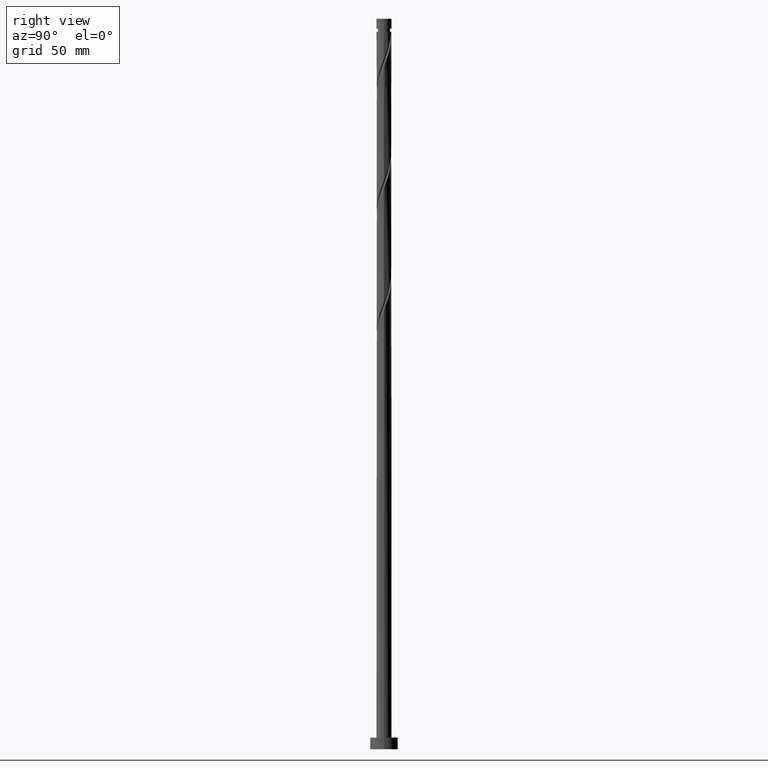
[diagram: clean part render]
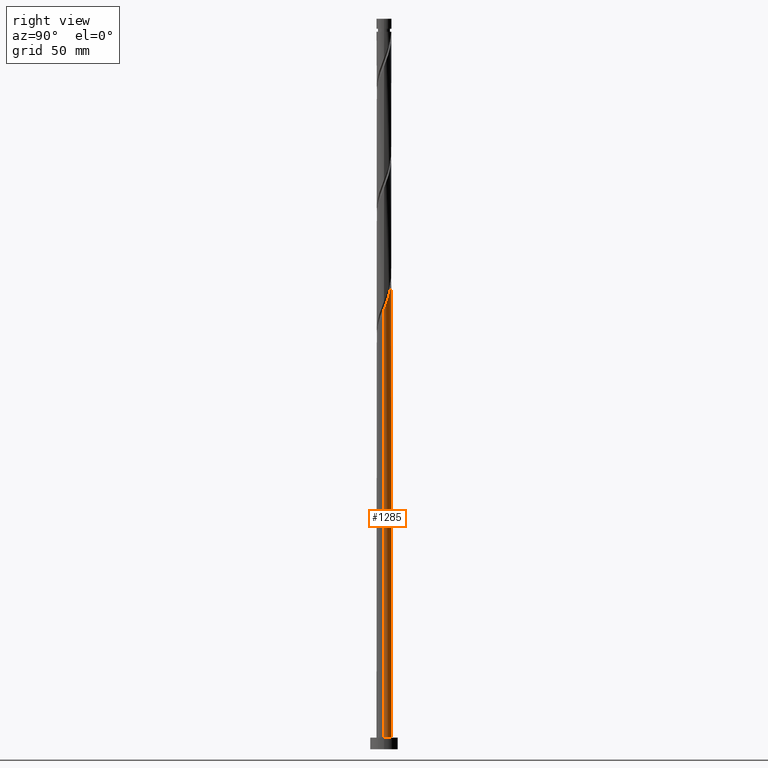
[diagram: same view with one face highlighted and labeled with its STEP entity id]
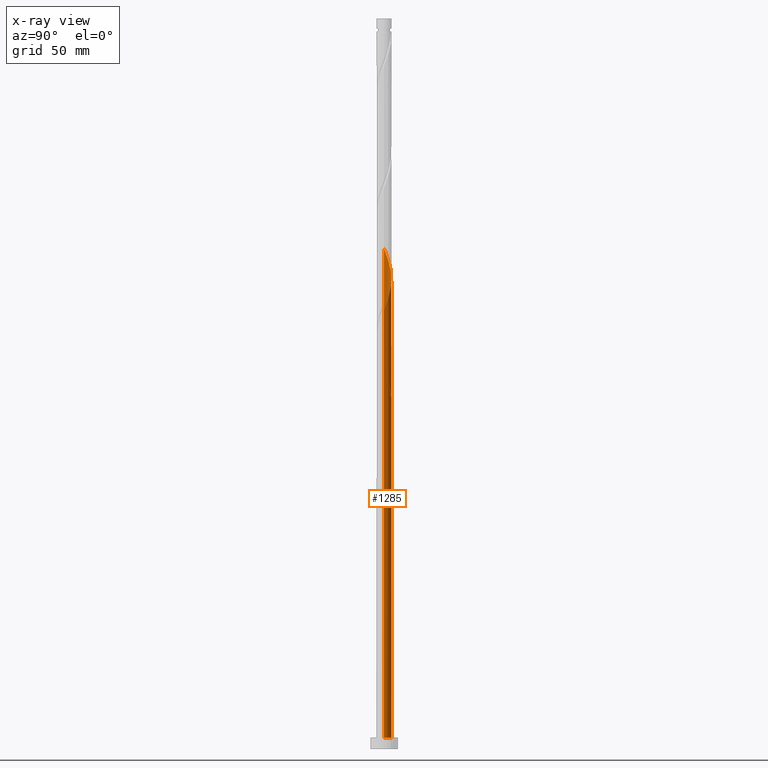
[diagram: x-ray of the same camera — body ghosted, the highlighted face saturated]
A machine part, right view. The second image highlights one B-rep face of the part: STEP entity #1285.
The next image is the same camera in x-ray: the body ghosted, the highlighted face saturated — about 0% of this face is hidden behind the body in this view.
In plain terms, the highlighted cylindrical surface (edge-blend (fillet) strip) has radius 3.25 mm, axis along (-0, -0, -1).
Its self-contained STEP definition (entity closure, byte-faithful):
#12 = CYLINDRICAL_SURFACE ( 'NONE', #1210, 3.250000000000000444 ) ;
#33 = DIRECTION ( 'NONE',  ( 0.000000000000000000, 0.000000000000000000, 1.000000000000000000 ) ) ;
#45 = CARTESIAN_POINT ( 'NONE',  ( -3.250000000000004441, 0.03910691579077167634, 163.2696567482252874 ) ) ;
#66 = CARTESIAN_POINT ( 'NONE',  ( -3.249058997255960257, 0.07820250859228379536, 215.6695365143565368 ) ) ;
#69 = EDGE_CURVE ( 'NONE', #617, #1057, #356, .T. ) ;
#72 = CARTESIAN_POINT ( 'NONE',  ( -0.7992254509778172755, 3.150196609500636846, 155.6695365143564800 ) ) ;
#84 = ORIENTED_EDGE ( 'NONE', *, *, #1621, .T. ) ;
#94 = CARTESIAN_POINT ( 'NONE',  ( 2.810333910491136233, 1.672906533717720912, 194.1070365143565368 ) ) ;
#156 = CARTESIAN_POINT ( 'NONE',  ( -3.060145528295977524, 1.154167364233618098, 160.3570365143565368 ) ) ;
#162 = EDGE_CURVE ( 'NONE', #311, #1448, #1530, .T. ) ;
#167 = DIRECTION ( 'NONE',  ( -1.000000000000000000, 0.000000000000000000, 0.000000000000000000 ) ) ;
#179 = CARTESIAN_POINT ( 'NONE',  ( -3.250000000000000000, -1.552280446238707703E-14, 166.7190535922625543 ) ) ;
#201 = CARTESIAN_POINT ( 'NONE',  ( 0.000000000000000000, 0.000000000000000000, 315.0000000000000000 ) ) ;
#214 = CARTESIAN_POINT ( 'NONE',  ( -3.250000000000000444, 0.000000000000000000, 5.000000000000000000 ) ) ;
#220 = CARTESIAN_POINT ( 'NONE',  ( -2.086896333651874880, 2.491458145863655105, 159.4195365143564800 ) ) ;
#224 = CARTESIAN_POINT ( 'NONE',  ( -1.339255840709440815, 2.961231803342264435, 206.2945365143564516 ) ) ;
#251 = CARTESIAN_POINT ( 'NONE',  ( 0.000000000000000000, 0.000000000000000000, 151.9195365143565084 ) ) ;
#260 = CARTESIAN_POINT ( 'NONE',  ( -0.2878785205374513878, 3.257870303806616352, 203.4820365143565368 ) ) ;
#264 = CARTESIAN_POINT ( 'NONE',  ( -1.005605147701160273, 3.112129696193390860, 152.8570365143564800 ) ) ;
#277 = ORIENTED_EDGE ( 'NONE', *, *, #807, .F. ) ;
#281 = EDGE_CURVE ( 'NONE', #1448, #1698, #1314, .T. ) ;
#300 = CARTESIAN_POINT ( 'NONE',  ( -3.250000000000004441, -1.925424784276849200E-15, 163.3700194364504057 ) ) ;
#308 = DIRECTION ( 'NONE',  ( -0.000000000000000000, -0.000000000000000000, -1.000000000000000000 ) ) ;
#311 = VERTEX_POINT ( 'NONE', #1219 ) ;
#325 = VERTEX_POINT ( 'NONE', #1715 ) ;
#334 = CARTESIAN_POINT ( 'NONE',  ( -3.150196609500639955, 0.7992254509778187188, 161.2945365143564516 ) ) ;
#356 = LINE ( 'NONE', #1675, #938 ) ;
#366 = EDGE_CURVE ( 'NONE', #311, #617, #1557, .T. ) ;
#382 = CARTESIAN_POINT ( 'NONE',  ( -0.07820250859228310147, 3.249058997255955372, 153.7945365143565084 ) ) ;
#385 = CARTESIAN_POINT ( 'NONE',  ( 3.112129696193390860, 1.005605147701160051, 192.2320365143565084 ) ) ;
#406 = CARTESIAN_POINT ( 'NONE',  ( 3.250000000000004441, 1.507503125674122439E-15, 189.6200194364504625 ) ) ;
#409 = DIRECTION ( 'NONE',  ( -1.000000000000000000, 0.000000000000000000, 0.000000000000000000 ) ) ;
#420 = CARTESIAN_POINT ( 'NONE',  ( 0.07820250859228454476, 3.249058997255959813, 202.5445365143565368 ) ) ;
#425 = CARTESIAN_POINT ( 'NONE',  ( -2.491458145863657325, 2.086896333651877988, 157.5445365143565368 ) ) ;
#470 = CARTESIAN_POINT ( 'NONE',  ( -3.112129696193387751, 1.005605147701159607, 164.1070365143564800 ) ) ;
#477 = CARTESIAN_POINT ( 'NONE',  ( -3.240247690705303274, 0.4442835377220196724, 162.2320365143565084 ) ) ;
#504 = VERTEX_POINT ( 'NONE', #806 ) ;
#519 = VECTOR ( 'NONE', #1874, 1000.000000000000000 ) ;
#537 = CARTESIAN_POINT ( 'NONE',  ( 0.4442835377220202830, 3.240247690705302830, 201.6070365143565084 ) ) ;
#544 = CARTESIAN_POINT ( 'NONE',  ( -2.256321400684337952, 2.367616247584416467, 209.1070365143565368 ) ) ;
#545 = CIRCLE ( 'NONE', #785, 3.250000000000000444 ) ;
#556 = CARTESIAN_POINT ( 'NONE',  ( -0.6467418341193053033, 3.185000000000003606, 204.4195365143565368 ) ) ;
#565 = CARTESIAN_POINT ( 'NONE',  ( 1.154167364233618986, 3.060145528295977080, 199.7320365143565084 ) ) ;
#567 = CARTESIAN_POINT ( 'NONE',  ( 3.250000000000000444, 3.980102097228898231E-16, 5.000000000000000000 ) ) ;
#574 = CARTESIAN_POINT ( 'NONE',  ( 2.588975079037776794, 1.964613967201029432, 195.0445365143564516 ) ) ;
#610 = CARTESIAN_POINT ( 'NONE',  ( -2.893370209669477333, 1.480171891976478582, 159.4195365143564800 ) ) ;
#617 = VERTEX_POINT ( 'NONE', #714 ) ;
#634 = DIRECTION ( 'NONE',  ( 1.000000000000000000, 0.000000000000000000, 0.000000000000000000 ) ) ;
#656 = CARTESIAN_POINT ( 'NONE',  ( -0.4442835377220185067, 3.240247690705299277, 154.7320365143565368 ) ) ;
#676 = CARTESIAN_POINT ( 'NONE',  ( 3.185000000000003606, 0.6467418341193055253, 191.2945365143565084 ) ) ;
#685 = CARTESIAN_POINT ( 'NONE',  ( 2.961231803342264435, 1.339255840709440148, 193.1695365143565084 ) ) ;
#694 = LINE ( 'NONE', #1894, #519 ) ;
#714 = CARTESIAN_POINT ( 'NONE',  ( -3.250000000000004885, -1.925424784276849200E-15, 215.8700194364505194 ) ) ;
#730 = CARTESIAN_POINT ( 'NONE',  ( -0.6467418341193055253, 3.185000000000003606, 151.9195365143565084 ) ) ;
#751 = CARTESIAN_POINT ( 'NONE',  ( -3.250000000000000444, 0.3266372899592467349, 165.8807825132989251 ) ) ;
#759 = VERTEX_POINT ( 'NONE', #1526 ) ;
#785 = AXIS2_PLACEMENT_3D ( 'NONE', #251, #1288, #409 ) ;
#806 = CARTESIAN_POINT ( 'NONE',  ( -0.6467418341193055253, 3.185000000000003162, 151.9195365143565084 ) ) ;
#807 = EDGE_CURVE ( 'NONE', #1057, #325, #1757, .T. ) ;
#819 = CARTESIAN_POINT ( 'NONE',  ( -1.480171891976476584, 2.893370209669474225, 157.5445365143565084 ) ) ;
#836 = CARTESIAN_POINT ( 'NONE',  ( -2.367616247584412914, 2.256321400684335732, 160.3570365143564800 ) ) ;
#896 = CARTESIAN_POINT ( 'NONE',  ( -2.726594891042978919, 1.806176419719339732, 158.4820365143564800 ) ) ;
#909 = CARTESIAN_POINT ( 'NONE',  ( -3.249058997255960257, 0.07820250859228379536, 163.1695365143564516 ) ) ;
#938 = VECTOR ( 'NONE', #1099, 1000.000000000000000 ) ;
#944 =( BOUNDED_CURVE ( )  B_SPLINE_CURVE ( 2, ( #730, #264, #1458, #1441, #1301, #1889, #425, #896, #610, #156, #334, #477, #909, #45, #300 ),
 .UNSPECIFIED., .F., .T. ) 
 B_SPLINE_CURVE_WITH_KNOTS ( ( 3, 2, 2, 2, 2, 2, 2, 3 ),
 ( 0.000000000000000000, 0.008928571428571396851, 0.01785714285714290472, 0.02678571428571430504, 0.03571428571428569843, 0.04464285714285709528, 0.05357142857142861009, 0.05453034012992197255 ),
 .UNSPECIFIED. ) 
 CURVE ( )  GEOMETRIC_REPRESENTATION_ITEM ( )  RATIONAL_B_SPLINE_CURVE ( ( 0.9090909090909453649, 0.9033747362666201264, 0.9090909090909453649, 0.9033747362666201264, 0.9090909090909453649, 0.9033747362666201264, 0.9090909090909453649, 0.9033747362666201264, 0.9090909090909453649, 0.9033747362666201264, 0.9090909090909453649, 0.9033747362666201264, 0.9090909090909453649, 0.9084770030214871506, 0.9079949616362155140 ) ) 
 REPRESENTATION_ITEM ( '' )  );
#947 = CARTESIAN_POINT ( 'NONE',  ( 3.250000000000000444, 3.980102097228898231E-16, 315.0000000000000000 ) ) ;
#962 = CARTESIAN_POINT ( 'NONE',  ( -2.726594891042978919, 1.806176419719339732, 210.9820365143565084 ) ) ;
#981 = CARTESIAN_POINT ( 'NONE',  ( -3.060145528295977524, 1.154167364233618098, 212.8570365143565652 ) ) ;
#1025 = ORIENTED_EDGE ( 'NONE', *, *, #1915, .F. ) ;
#1046 = EDGE_CURVE ( 'NONE', #504, #759, #944, .T. ) ;
#1057 = VERTEX_POINT ( 'NONE', #179 ) ;
#1058 = CARTESIAN_POINT ( 'NONE',  ( -2.588975079037771909, 1.964613967201027434, 161.2945365143564800 ) ) ;
#1066 = ORIENTED_EDGE ( 'NONE', *, *, #1046, .F. ) ;
#1092 = DIRECTION ( 'NONE',  ( -0.000000000000000000, -0.000000000000000000, -1.000000000000000000 ) ) ;
#1099 = DIRECTION ( 'NONE',  ( -0.000000000000000000, -0.000000000000000000, -1.000000000000000000 ) ) ;
#1109 = CARTESIAN_POINT ( 'NONE',  ( -2.491458145863657325, 2.086896333651877988, 210.0445365143564800 ) ) ;
#1120 = CARTESIAN_POINT ( 'NONE',  ( -3.150196609500639955, 0.7992254509778187188, 213.7945365143565084 ) ) ;
#1136 = CARTESIAN_POINT ( 'NONE',  ( -3.240247690705303274, 0.4442835377220196724, 214.7320365143565084 ) ) ;
#1148 = CARTESIAN_POINT ( 'NONE',  ( 2.367616247584416467, 2.256321400684337952, 195.9820365143565084 ) ) ;
#1202 = CARTESIAN_POINT ( 'NONE',  ( -2.810333910491133125, 1.672906533717720245, 162.2320365143565368 ) ) ;
#1210 = AXIS2_PLACEMENT_3D ( 'NONE', #201, #308, #167 ) ;
#1219 = CARTESIAN_POINT ( 'NONE',  ( 3.250000000000004885, 1.507503125674122439E-15, 189.6200194364504625 ) ) ;
#1263 = CARTESIAN_POINT ( 'NONE',  ( 1.480171891976479026, 2.893370209669477333, 198.7945365143565652 ) ) ;
#1268 = CARTESIAN_POINT ( 'NONE',  ( -1.154167364233616322, 3.060145528295974415, 156.6070365143565368 ) ) ;
#1285 = ADVANCED_FACE ( 'NONE', ( #1522 ), #12, .T. ) ;
#1286 = CARTESIAN_POINT ( 'NONE',  ( -2.893370209669477333, 1.480171891976478582, 211.9195365143565084 ) ) ;
#1288 = DIRECTION ( 'NONE',  ( 0.000000000000000000, -0.000000000000000000, -1.000000000000000000 ) ) ;
#1301 = CARTESIAN_POINT ( 'NONE',  ( -1.964613967201029432, 2.588975079037776794, 155.6695365143564800 ) ) ;
#1312 = ORIENTED_EDGE ( 'NONE', *, *, #162, .T. ) ;
#1314 = CIRCLE ( 'NONE', #1871, 3.250000000000000444 ) ;
#1363 = CARTESIAN_POINT ( 'NONE',  ( 0.000000000000000000, 0.000000000000000000, 5.000000000000000000 ) ) ;
#1398 = CARTESIAN_POINT ( 'NONE',  ( -1.964613967201029432, 2.588975079037776794, 208.1695365143564231 ) ) ;
#1403 = CARTESIAN_POINT ( 'NONE',  ( 0.2878785205374522205, 3.257870303806612799, 152.8570365143564800 ) ) ;
#1405 = CARTESIAN_POINT ( 'NONE',  ( 2.086896333651878432, 2.491458145863657325, 196.9195365143565368 ) ) ;
#1441 = CARTESIAN_POINT ( 'NONE',  ( -1.672906533717721356, 2.810333910491136233, 154.7320365143564516 ) ) ;
#1448 = VERTEX_POINT ( 'NONE', #567 ) ;
#1451 = ORIENTED_EDGE ( 'NONE', *, *, #281, .T. ) ;
#1458 = CARTESIAN_POINT ( 'NONE',  ( -1.339255840709440815, 2.961231803342264435, 153.7945365143565084 ) ) ;
#1522 = FACE_OUTER_BOUND ( 'NONE', #1904, .T. ) ;
#1526 = CARTESIAN_POINT ( 'NONE',  ( -3.250000000000004885, -1.925424784276849200E-15, 163.3700194364504057 ) ) ;
#1530 = LINE ( 'NONE', #947, #1654 ) ;
#1532 = CARTESIAN_POINT ( 'NONE',  ( -3.250000000000000000, -1.552280446238707703E-14, 166.7190535922625543 ) ) ;
#1541 = CARTESIAN_POINT ( 'NONE',  ( -1.005605147701160273, 3.112129696193390860, 205.3570365143565084 ) ) ;
#1550 = CARTESIAN_POINT ( 'NONE',  ( 1.806176419719339732, 2.726594891042978475, 197.8570365143564800 ) ) ;
#1556 = CARTESIAN_POINT ( 'NONE',  ( 0.6467418341193066356, 3.185000000000000053, 151.9195365143564800 ) ) ;
#1557 =( BOUNDED_CURVE ( )  B_SPLINE_CURVE ( 2, ( #406, #1846, #676, #385, #685, #94, #574, #1148, #1405, #1550, #1263, #565, #1581, #537, #420, #260, #556, #1541, #224, #1855, #1398, #544, #1109, #962, #1286, #981, #1120, #1136, #66, #1721, #1706 ),
 .UNSPECIFIED., .F., .T. ) 
 B_SPLINE_CURVE_WITH_KNOTS ( ( 3, 2, 2, 2, 2, 2, 2, 2, 2, 2, 2, 2, 2, 2, 2, 3 ),
 ( 0.1795303401299220558, 0.1875000000000000000, 0.1964285714285713969, 0.2053571428571429047, 0.2142857142857143016, 0.2232142857142856984, 0.2321428571428570953, 0.2410714285714286031, 0.2500000000000000000, 0.2589285714285713969, 0.2678571428571429047, 0.2767857142857143016, 0.2857142857142856984, 0.2946428571428570953, 0.3035714285714286031, 0.3045303401299222501 ),
 .UNSPECIFIED. ) 
 CURVE ( )  GEOMETRIC_REPRESENTATION_ITEM ( )  RATIONAL_B_SPLINE_CURVE ( ( 0.9079949616362155140, 0.9039886423360783407, 0.9090909090909453649, 0.9033747362666201264, 0.9090909090909453649, 0.9033747362666201264, 0.9090909090909453649, 0.9033747362666201264, 0.9090909090909453649, 0.9033747362666201264, 0.9090909090909453649, 0.9033747362666201264, 0.9090909090909453649, 0.9033747362666201264, 0.9090909090909453649, 0.9033747362666201264, 0.9090909090909453649, 0.9033747362666201264, 0.9090909090909453649, 0.9033747362666201264, 0.9090909090909453649, 0.9033747362666201264, 0.9090909090909453649, 0.9033747362666201264, 0.9090909090909453649, 0.9033747362666201264, 0.9090909090909453649, 0.9033747362666201264, 0.9090909090909453649, 0.9084770030214870395, 0.9079949616362152920 ) ) 
 REPRESENTATION_ITEM ( '' )  );
#1561 = ORIENTED_EDGE ( 'NONE', *, *, #69, .F. ) ;
#1581 = CARTESIAN_POINT ( 'NONE',  ( 0.7992254509778196070, 3.150196609500639955, 200.6695365143564800 ) ) ;
#1621 = EDGE_CURVE ( 'NONE', #504, #325, #545, .T. ) ;
#1646 = ORIENTED_EDGE ( 'NONE', *, *, #366, .F. ) ;
#1647 = CARTESIAN_POINT ( 'NONE',  ( -2.961231803342259994, 1.339255840709439704, 163.1695365143565084 ) ) ;
#1654 = VECTOR ( 'NONE', #1092, 1000.000000000000000 ) ;
#1675 = CARTESIAN_POINT ( 'NONE',  ( -3.250000000000000444, 0.000000000000000000, 315.0000000000000000 ) ) ;
#1698 = VERTEX_POINT ( 'NONE', #214 ) ;
#1706 = CARTESIAN_POINT ( 'NONE',  ( -3.250000000000004885, -1.925424784276849200E-15, 215.8700194364505194 ) ) ;
#1715 = CARTESIAN_POINT ( 'NONE',  ( 0.6467418341193066356, 3.185000000000000053, 151.9195365143565084 ) ) ;
#1721 = CARTESIAN_POINT ( 'NONE',  ( -3.250000000000005329, 0.03910691579076033819, 215.7696567482254295 ) ) ;
#1757 =( BOUNDED_CURVE ( )  B_SPLINE_CURVE ( 2, ( #1532, #751, #1784, #470, #1647, #1202, #1058, #836, #220, #1834, #819, #1268, #72, #656, #382, #1403, #1556 ),
 .UNSPECIFIED., .F., .T. ) 
 B_SPLINE_CURVE_WITH_KNOTS ( ( 3, 2, 2, 2, 2, 2, 2, 2, 3 ),
 ( 0.9295303401299220836, 0.9375000000000000000, 0.9464285714285713969, 0.9553571428571429047, 0.9642857142857143016, 0.9732142857142856984, 0.9821428571428570953, 0.9910714285714286031, 1.000000000000000000 ),
 .UNSPECIFIED. ) 
 CURVE ( )  GEOMETRIC_REPRESENTATION_ITEM ( )  RATIONAL_B_SPLINE_CURVE ( ( 0.9079949616362104070, 0.9039886423360735668, 0.9090909090909403689, 0.9033747362666152414, 0.9090909090909403689, 0.9033747362666152414, 0.9090909090909403689, 0.9033747362666152414, 0.9090909090909403689, 0.9033747362666152414, 0.9090909090909403689, 0.9033747362666152414, 0.9090909090909403689, 0.9033747362666152414, 0.9090909090909403689, 0.9033747362666152414, 0.9090909090909403689 ) ) 
 REPRESENTATION_ITEM ( '' )  );
#1784 = CARTESIAN_POINT ( 'NONE',  ( -3.185000000000000053, 0.6467418341193059694, 165.0445365143564800 ) ) ;
#1834 = CARTESIAN_POINT ( 'NONE',  ( -1.806176419719337289, 2.726594891042975366, 158.4820365143565084 ) ) ;
#1846 = CARTESIAN_POINT ( 'NONE',  ( 3.250000000000004885, 0.3266372899592449586, 190.4582905154140349 ) ) ;
#1855 = CARTESIAN_POINT ( 'NONE',  ( -1.672906533717721356, 2.810333910491136233, 207.2320365143565084 ) ) ;
#1871 = AXIS2_PLACEMENT_3D ( 'NONE', #1363, #33, #634 ) ;
#1874 = DIRECTION ( 'NONE',  ( -0.000000000000000000, -0.000000000000000000, -1.000000000000000000 ) ) ;
#1889 = CARTESIAN_POINT ( 'NONE',  ( -2.256321400684337952, 2.367616247584416467, 156.6070365143565368 ) ) ;
#1894 = CARTESIAN_POINT ( 'NONE',  ( -3.250000000000000444, 0.000000000000000000, 315.0000000000000000 ) ) ;
#1904 = EDGE_LOOP ( 'NONE', ( #1646, #1312, #1451, #1025, #1066, #84, #277, #1561 ) ) ;
#1915 = EDGE_CURVE ( 'NONE', #759, #1698, #694, .T. ) ;